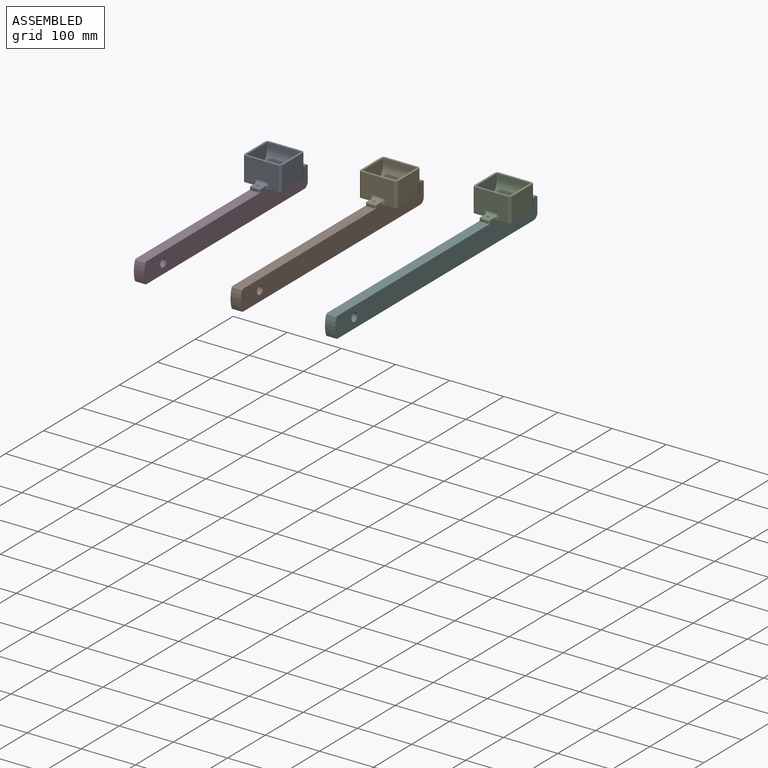
[diagram: assembled view]
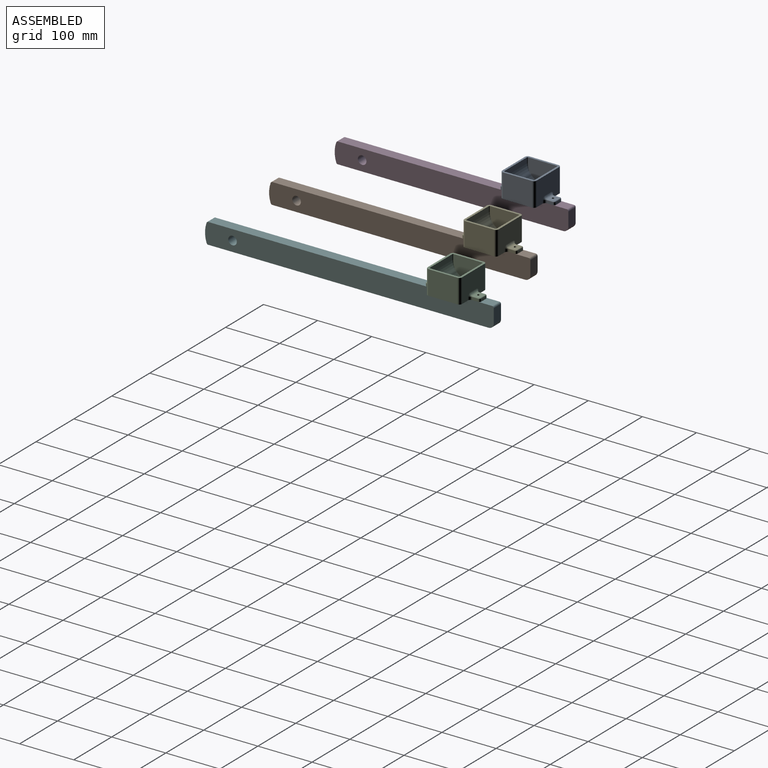
[diagram: assembled view, second angle]
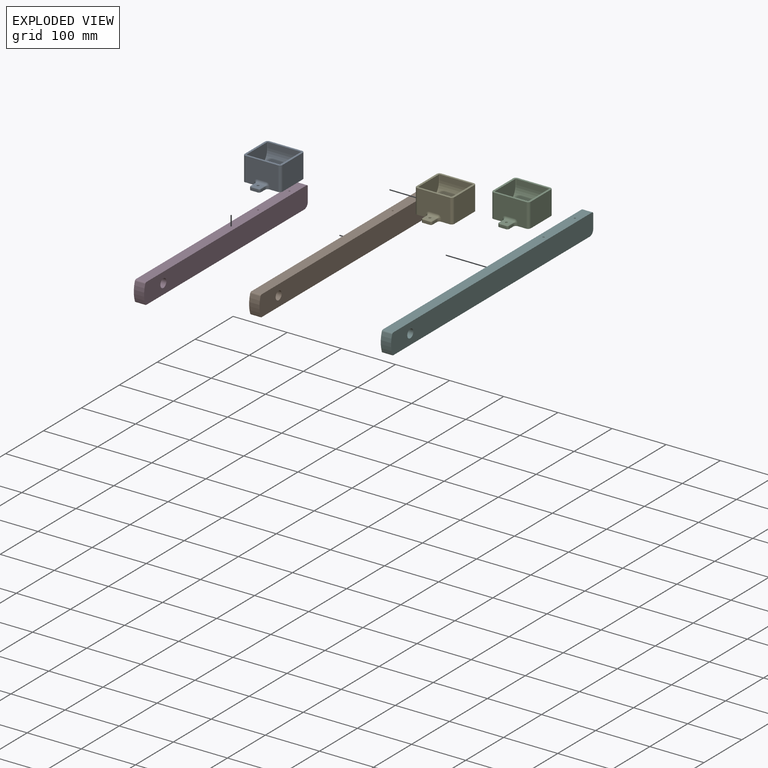
[diagram: exploded view]
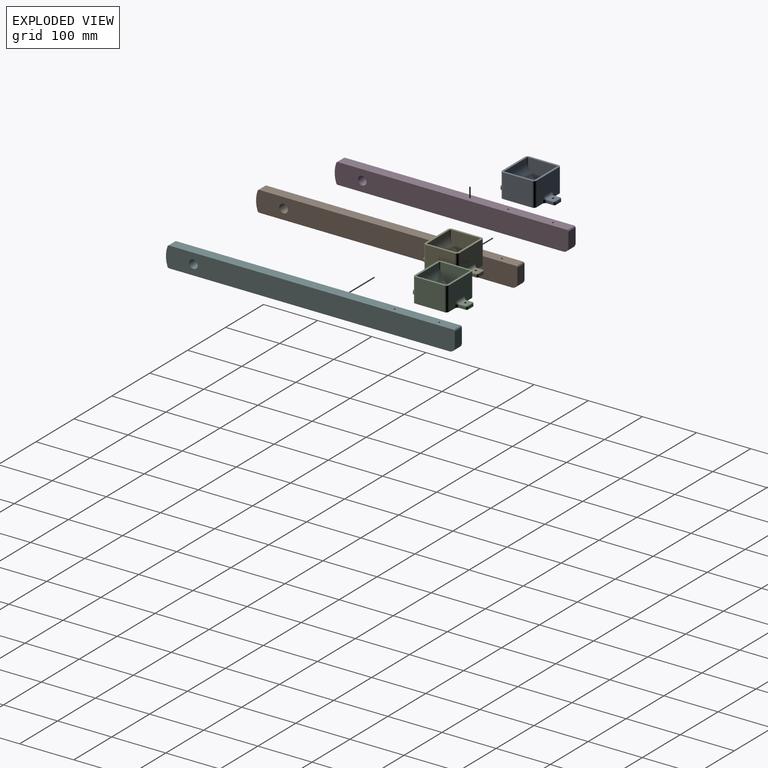
[diagram: exploded view, second angle]
ASSEMBLY  parts=6 mates=3
PART A: 57 faces, bbox 69.9x102.1x44.5 mm
  f0: plane 53.59x44.45mm, normal (-1,0,0), area 2382.3mm2, adj f6,f12,f53,f56
  f1: plane 16x12.76mm, normal (0,0,1), area 189.3mm2, adj f15,f32,f33,f34,f35,f36,f39
  f2: plane 53.59x44.45mm, normal (1,0,0), area 2382.3mm2, adj f6,f12,f54,f55
  f3: plane 16x12.76mm, normal (0,0,1), area 189.3mm2, adj f16,f27,f28,f29,f30,f31,f44
  f4: plane 12.7x4.83mm, normal (0,-1,0), area 61.3mm2, adj f6,f23,f24,f34
  f5: plane 12.7x4.83mm, normal (0,1,0), area 61.3mm2, adj f6,f25,f26,f29
  f6: plane 101.6x69.85mm, normal (0,0,-1), area 5060.1mm2, adj f0,f2,f4,f5,f10,f11,f15,f16
  f7: plane 59.94x10.16mm, normal (0,1,0), area 609mm2, adj f9,f12,f49,f52
  f8: plane 59.94x10.16mm, normal (0,-1,0), area 609mm2, adj f9,f12,f47,f50
  f9: cylinder r=27.94mm len=59.94mm, axis (1,0,0), area 5198.3mm2, adj f7,f8,f17,f18,f48,f51
  f10: plane 59.94x44.45mm, normal (0,-1,0), area 2363.9mm2, adj f6,f12,f37,f38,f39,f40,f41,f53
  f11: plane 59.94x44.45mm, normal (0,1,0), area 2363.9mm2, adj f6,f12,f42,f43,f44,f45,f46,f55
  f12: plane 69.85x63.5mm, normal (0,0,1), area 938.1mm2, adj f0,f2,f7,f8,f10,f11,f13,f14
  f13: plane 53.59x36.96mm, normal (1,0,0), area 1672.5mm2, adj f12,f47,f48,f49
  f14: plane 53.59x36.96mm, normal (-1,0,0), area 1672.5mm2, adj f12,f50,f51,f52
  f15: cylinder r=2.1mm len=6.35mm, axis (0,0,1), area 83.6mm2, adj f1,f6
  f16: cylinder r=2.1mm len=6.35mm, axis (0,0,1), area 83.6mm2, adj f3,f6
  f17: cylinder r=3.17mm len=6.53mm, axis (0,0,1), area 128.5mm2, adj f6,f9
  f18: cylinder r=3.17mm len=6.53mm, axis (0,0,1), area 128.5mm2, adj f6,f9
  f19: plane 11.11x4.83mm, normal (-1,0,0), area 53.6mm2, adj f6,f26,f31,f46
  f20: plane 11.11x4.83mm, normal (1,0,0), area 53.6mm2, adj f6,f25,f27,f42
  f21: plane 11.11x4.83mm, normal (1,0,0), area 53.6mm2, adj f6,f24,f36,f37
  f22: plane 11.11x4.83mm, normal (-1,0,0), area 53.6mm2, adj f6,f23,f32,f41
  f23: cylinder r=3.17mm len=4.83mm, axis (0,0,1), area 24.1mm2, adj f4,f6,f22,f33
  f24: cylinder r=3.17mm len=4.83mm, axis (0,0,-1), area 24.1mm2, adj f4,f6,f21,f35
  f25: cylinder r=3.17mm len=4.83mm, axis (0,0,-1), area 24.1mm2, adj f5,f6,f20,f28
  f26: cylinder r=3.17mm len=4.83mm, axis (0,0,1), area 24.1mm2, adj f5,f6,f19,f30
  f27: cylinder r=1.52mm len=11.11mm, axis (0,-1,0), area 26.6mm2, adj f3,f20,f28,f43
  f28: torus R=1.65mm, axis (0,0,-1), area 9.9mm2, adj f3,f25,f27,f29
  f29: cylinder r=1.52mm len=12.7mm, axis (-1,0,0), area 30.4mm2, adj f3,f5,f28,f30
  f30: torus R=1.65mm, axis (0,0,-1), area 9.9mm2, adj f3,f26,f29,f31
  f31: cylinder r=1.52mm len=11.11mm, axis (0,1,0), area 26.6mm2, adj f3,f19,f30,f45
  f32: cylinder r=1.52mm len=11.11mm, axis (0,1,0), area 26.6mm2, adj f1,f22,f33,f40
  f33: torus R=1.65mm, axis (0,0,-1), area 9.9mm2, adj f1,f23,f32,f34
  f34: cylinder r=1.52mm len=12.7mm, axis (1,0,0), area 30.4mm2, adj f1,f4,f33,f35
  f35: torus R=1.65mm, axis (0,0,-1), area 9.9mm2, adj f1,f24,f34,f36
  f36: cylinder r=1.52mm len=11.11mm, axis (0,-1,0), area 26.6mm2, adj f1,f21,f35,f38
  f37: cylinder r=4.76mm len=4.83mm, axis (0,0,-1), area 36.1mm2, adj f6,f10,f21,f38
  f38: torus R=6.29mm, axis (0,1,0), area 38.2mm2, adj f10,f36,f37,f39
  f39: cylinder r=4.76mm len=16mm, axis (-1,0,0), area 119.7mm2, adj f1,f10,f38,f40
  f40: torus R=6.29mm, axis (0,1,0), area 38.2mm2, adj f10,f32,f39,f41
  f41: cylinder r=4.76mm len=4.83mm, axis (0,0,1), area 36.1mm2, adj f6,f10,f22,f40
  f42: cylinder r=4.76mm len=4.83mm, axis (0,0,-1), area 36.1mm2, adj f6,f11,f20,f43
  f43: torus R=6.29mm, axis (0,1,0), area 38.2mm2, adj f11,f27,f42,f44
  f44: cylinder r=4.76mm len=16mm, axis (1,0,0), area 119.7mm2, adj f3,f11,f43,f45
  f45: torus R=6.29mm, axis (0,1,0), area 38.2mm2, adj f11,f31,f44,f46
  f46: cylinder r=4.76mm len=4.83mm, axis (0,0,1), area 36.1mm2, adj f6,f11,f19,f45
  f47: cylinder r=1.14mm len=10.16mm, axis (0,0,1), area 18.2mm2, adj f8,f12,f13,f48
  f48: torus R=26.8mm, axis (1,0,0), area 155.3mm2, adj f9,f13,f47,f49
  f49: cylinder r=1.14mm len=10.16mm, axis (0,0,-1), area 18.2mm2, adj f7,f12,f13,f48
  f50: cylinder r=1.14mm len=10.16mm, axis (0,0,-1), area 18.2mm2, adj f8,f12,f14,f51
  f51: torus R=26.8mm, axis (1,0,0), area 155.3mm2, adj f9,f14,f50,f52
  f52: cylinder r=1.14mm len=10.16mm, axis (0,0,1), area 18.2mm2, adj f7,f12,f14,f51
  f53: cylinder r=4.95mm len=44.45mm, axis (0,0,-1), area 345.8mm2, adj f0,f6,f10,f12
  f54: cylinder r=4.95mm len=44.45mm, axis (0,0,1), area 345.8mm2, adj f2,f6,f10,f12
  f55: cylinder r=4.95mm len=44.45mm, axis (0,0,-1), area 345.8mm2, adj f2,f6,f11,f12
  f56: cylinder r=4.95mm len=44.45mm, axis (0,0,1), area 345.8mm2, adj f0,f6,f11,f12
PART B: 15 faces, bbox 19.1x482.6x38.1 mm
  f0: plane 467.18x19.05mm, normal (0,0,-1), area 8899.7mm2, adj f5,f6,f11,f14
  f1: plane 25.4x19.05mm, normal (0,1,0), area 483.9mm2, adj f5,f6,f11,f12
  f2: plane 473.53x19.05mm, normal (0,0,1), area 9004.8mm2, adj f5,f6,f7,f9,f12,f13
  f3: cylinder r=7.94mm len=19.05mm, axis (-1,0,0), area 950.1mm2, adj f5,f6
  f4: cylinder r=50.8mm len=33.87mm, axis (-1,0,0), area 657.7mm2, adj f5,f6,f13,f14
  f5: plane 482.6x38.1mm, normal (1,0,0), area 18119.4mm2, adj f0,f1,f2,f3,f4,f11,f12,f13
  f6: plane 482.6x38.1mm, normal (-1,0,0), area 18119.4mm2, adj f0,f1,f2,f3,f4,f11,f12,f13
  f7: cylinder r=1.59mm len=25.4mm, axis (0,0,1), area 253.4mm2, adj f2,f8
  f8: plane 3.18x3.18mm, normal (0,0,1), area 7.9mm2, adj f7
  f9: cylinder r=1.59mm len=25.4mm, axis (0,0,1), area 253.4mm2, adj f2,f10
  f10: plane 3.18x3.18mm, normal (0,0,1), area 7.9mm2, adj f9
  f11: cylinder r=9.53mm len=19.05mm, axis (-1,0,0), area 285mm2, adj f0,f1,f5,f6
  f12: cylinder r=3.17mm len=19.05mm, axis (1,0,0), area 95mm2, adj f1,f2,f5,f6
  f13: cylinder r=3.17mm len=19.05mm, axis (-1,0,0), area 74.5mm2, adj f2,f4,f5,f6
  f14: cylinder r=3.17mm len=19.05mm, axis (-1,0,0), area 74.5mm2, adj f0,f4,f5,f6
PART C: same geometry as A
PART D: 15 faces, bbox 19.1x431.8x38.1 mm
  f0: plane 416.38x19.05mm, normal (0,0,-1), area 7932mm2, adj f5,f6,f11,f14
  f1: plane 25.4x19.05mm, normal (0,1,0), area 483.9mm2, adj f5,f6,f11,f12
  f2: plane 422.73x19.05mm, normal (0,0,1), area 8037.1mm2, adj f5,f6,f7,f9,f12,f13
  f3: cylinder r=7.94mm len=19.05mm, axis (-1,0,0), area 950.1mm2, adj f5,f6
  f4: cylinder r=50.8mm len=33.87mm, axis (-1,0,0), area 657.7mm2, adj f5,f6,f13,f14
  f5: plane 431.8x38.1mm, normal (1,0,0), area 16183.9mm2, adj f0,f1,f2,f3,f4,f11,f12,f13
  f6: plane 431.8x38.1mm, normal (-1,0,0), area 16183.9mm2, adj f0,f1,f2,f3,f4,f11,f12,f13
  f7: cylinder r=1.59mm len=25.4mm, axis (0,0,1), area 253.4mm2, adj f2,f8
  f8: plane 3.18x3.18mm, normal (0,0,1), area 7.9mm2, adj f7
  f9: cylinder r=1.59mm len=25.4mm, axis (0,0,1), area 253.4mm2, adj f2,f10
  f10: plane 3.18x3.18mm, normal (0,0,1), area 7.9mm2, adj f9
  f11: cylinder r=9.53mm len=19.05mm, axis (-1,0,0), area 285mm2, adj f0,f1,f5,f6
  f12: cylinder r=3.17mm len=19.05mm, axis (1,0,0), area 95mm2, adj f1,f2,f5,f6
  f13: cylinder r=3.17mm len=19.05mm, axis (-1,0,0), area 74.5mm2, adj f2,f4,f5,f6
  f14: cylinder r=3.17mm len=19.05mm, axis (-1,0,0), area 74.5mm2, adj f0,f4,f5,f6
PART E: same geometry as A
PART F: 15 faces, bbox 19.1x533.4x38.1 mm
  f0: plane 517.98x19.05mm, normal (0,0,-1), area 9867.4mm2, adj f5,f6,f11,f14
  f1: plane 25.4x19.05mm, normal (0,1,0), area 483.9mm2, adj f5,f6,f11,f12
  f2: plane 524.33x19.05mm, normal (0,0,1), area 9972.6mm2, adj f5,f6,f7,f9,f12,f13
  f3: cylinder r=7.94mm len=19.05mm, axis (-1,0,0), area 950.1mm2, adj f5,f6
  f4: cylinder r=50.8mm len=33.87mm, axis (-1,0,0), area 657.7mm2, adj f5,f6,f13,f14
  f5: plane 533.4x38.1mm, normal (1,0,0), area 20054.8mm2, adj f0,f1,f2,f3,f4,f11,f12,f13
  f6: plane 533.4x38.1mm, normal (-1,0,0), area 20054.8mm2, adj f0,f1,f2,f3,f4,f11,f12,f13
  f7: cylinder r=1.59mm len=25.4mm, axis (0,0,1), area 253.4mm2, adj f2,f8
  f8: plane 3.18x3.18mm, normal (0,0,1), area 7.9mm2, adj f7
  f9: cylinder r=1.59mm len=25.4mm, axis (0,0,1), area 253.4mm2, adj f2,f10
  f10: plane 3.18x3.18mm, normal (0,0,1), area 7.9mm2, adj f9
  f11: cylinder r=9.53mm len=19.05mm, axis (-1,0,0), area 285mm2, adj f0,f1,f5,f6
  f12: cylinder r=3.17mm len=19.05mm, axis (1,0,0), area 95mm2, adj f1,f2,f5,f6
  f13: cylinder r=3.17mm len=19.05mm, axis (-1,0,0), area 74.5mm2, adj f2,f4,f5,f6
  f14: cylinder r=3.17mm len=19.05mm, axis (-1,0,0), area 74.5mm2, adj f0,f4,f5,f6
PLACE A t=(-176.79,60.27,56.18)mm
PLACE B t=(-0.05,-241.91,34.43)mm fixed
PLACE C t=(172.58,167.03,56.7)mm
PLACE D t=(-176.79,-244.53,33.96)mm fixed
PLACE E t=(-0.05,113.69,56.66)mm
PLACE F t=(172.58,-239.37,34.47)mm fixed
MATE fastened A.f16 <-> D.f7  axis (0,0,-1) through (-176.79,101.54,53.01)mm
MATE fastened F.f7 <-> C.f16  axis (0,0,1) through (172.58,208.3,53.52)mm
MATE fastened B.f7 <-> E.f16  axis (0,0,1) through (-0.05,154.96,53.48)mm
